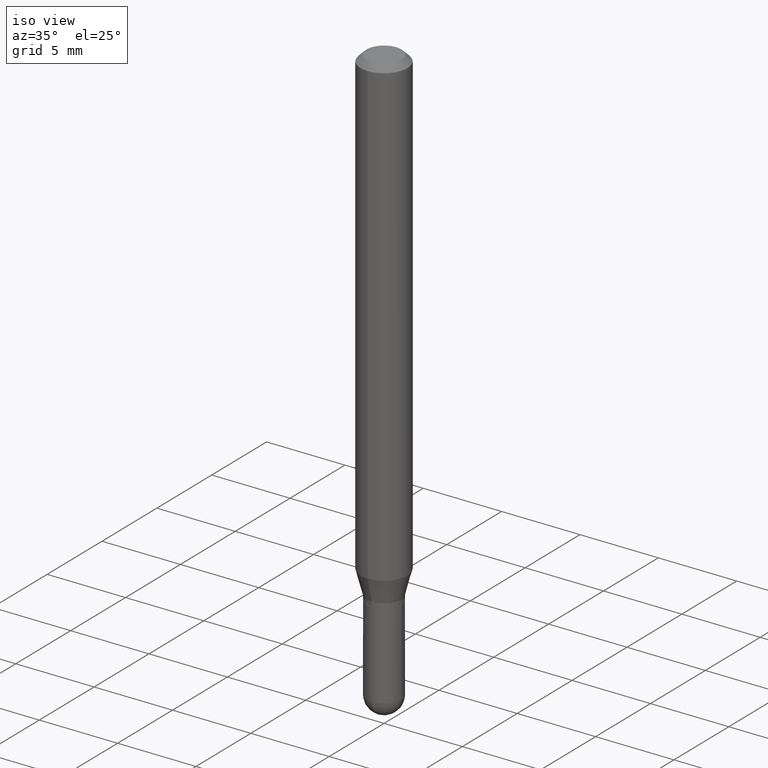
[diagram: clean part render]
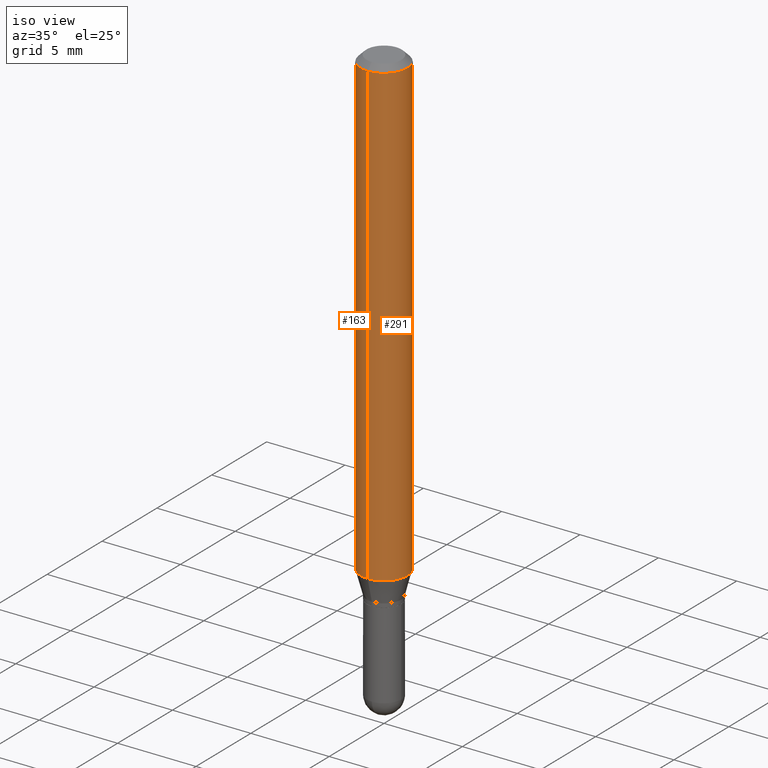
[diagram: same view with one multi-face feature highlighted, each face labeled with its STEP entity id]
A machine part, iso view. The highlighted faces form ONE feature: a constant-radius fillet chain: 2 tangent blend faces with common blend radius 1.4999 mm. The faces share edges in the B-rep.
Their STEP definitions:
[1] entity #163 (Cylinder):
#25 = CARTESIAN_POINT ( 'NONE',  ( 4.195754854663675961E-16, 0.05904999999999592519, -1.167320199780790491 ) ) ;
#27 = DIRECTION ( 'NONE',  ( -6.982962677686265922E-15, -1.000000000000000000, 3.505890868245046092E-15 ) ) ;
#28 = FACE_OUTER_BOUND ( 'NONE', #67, .T. ) ;
#29 = CARTESIAN_POINT ( 'NONE',  ( 2.854591987387200469E-29, -4.075752804959620874E-15, -1.167320199780790269 ) ) ;
#34 = LINE ( 'NONE', #420, #417 ) ;
#65 = CARTESIAN_POINT ( 'NONE',  ( 3.668134914383318048E-31, -5.237319810440648243E-17, -0.01500000000000009139 ) ) ;
#67 = EDGE_LOOP ( 'NONE', ( #92, #243, #298, #226 ) ) ;
#71 = CYLINDRICAL_SURFACE ( 'NONE', #80, 0.05904999999999999832 ) ;
#75 = CARTESIAN_POINT ( 'NONE',  ( 0.000000000000000000, 0.000000000000000000, 0.000000000000000000 ) ) ;
#80 = AXIS2_PLACEMENT_3D ( 'NONE', #75, #227, #457 ) ;
#92 = ORIENTED_EDGE ( 'NONE', *, *, #155, .F. ) ;
#109 = VERTEX_POINT ( 'NONE', #25 ) ;
#132 = CIRCLE ( 'NONE', #471, 0.05904999999999999832 ) ;
#135 = VERTEX_POINT ( 'NONE', #303 ) ;
#152 = DIRECTION ( 'NONE',  ( -2.445423276255530617E-29, 3.491546540293744525E-15, 1.000000000000000000 ) ) ;
#155 = EDGE_CURVE ( 'NONE', #109, #135, #34, .T. ) ;
#163 = ADVANCED_FACE ( 'NONE', ( #28 ), #71, .T. ) ;
#176 = VERTEX_POINT ( 'NONE', #387 ) ;
#179 = VERTEX_POINT ( 'NONE', #184 ) ;
#184 = CARTESIAN_POINT ( 'NONE',  ( -4.123439461173736383E-16, -0.05905000000000005383, -0.01499999999999988495 ) ) ;
#187 = LINE ( 'NONE', #500, #388 ) ;
#226 = ORIENTED_EDGE ( 'NONE', *, *, #265, .F. ) ;
#227 = DIRECTION ( 'NONE',  ( -2.445423276255530617E-29, 3.491546540293744130E-15, 1.000000000000000000 ) ) ;
#228 = AXIS2_PLACEMENT_3D ( 'NONE', #29, #271, #364 ) ;
#243 = ORIENTED_EDGE ( 'NONE', *, *, #276, .T. ) ;
#250 = CIRCLE ( 'NONE', #228, 0.05904999999999999832 ) ;
#265 = EDGE_CURVE ( 'NONE', #135, #179, #132, .T. ) ;
#270 = EDGE_CURVE ( 'NONE', #176, #179, #187, .T. ) ;
#271 = DIRECTION ( 'NONE',  ( -2.445423276255530617E-29, 3.491546540293744130E-15, 1.000000000000000000 ) ) ;
#276 = EDGE_CURVE ( 'NONE', #109, #176, #250, .T. ) ;
#298 = ORIENTED_EDGE ( 'NONE', *, *, #270, .T. ) ;
#303 = CARTESIAN_POINT ( 'NONE',  ( 4.195754854663679906E-16, 0.05904999999999995669, -0.01500000000000029955 ) ) ;
#364 = DIRECTION ( 'NONE',  ( -6.982962677686265922E-15, -1.000000000000000000, 4.626330217890369336E-15 ) ) ;
#383 = DIRECTION ( 'NONE',  ( -2.445423276255530617E-29, 3.491546540293744130E-15, 1.000000000000000000 ) ) ;
#387 = CARTESIAN_POINT ( 'NONE',  ( -4.123439461173455351E-16, -0.05905000000000407839, -1.167320199780790047 ) ) ;
#388 = VECTOR ( 'NONE', #152, 39.37007874015748143 ) ;
#417 = VECTOR ( 'NONE', #494, 39.37007874015748143 ) ;
#420 = CARTESIAN_POINT ( 'NONE',  ( 4.195754854663390985E-16, 0.05904999999999999832, -2.061758232043455943E-16 ) ) ;
#457 = DIRECTION ( 'NONE',  ( -6.982962677686265922E-15, -1.000000000000000000, 3.491546540293744130E-15 ) ) ;
#471 = AXIS2_PLACEMENT_3D ( 'NONE', #65, #383, #27 ) ;
#494 = DIRECTION ( 'NONE',  ( -2.445423276255530617E-29, 3.491546540293744525E-15, 1.000000000000000000 ) ) ;
#500 = CARTESIAN_POINT ( 'NONE',  ( -4.123439461173739834E-16, -0.05904999999999999832, 2.061758232043455943E-16 ) ) ;
[2] entity #291 (Cylinder):
#25 = CARTESIAN_POINT ( 'NONE',  ( 4.195754854663675961E-16, 0.05904999999999592519, -1.167320199780790491 ) ) ;
#34 = LINE ( 'NONE', #420, #417 ) ;
#79 = DIRECTION ( 'NONE',  ( -2.445423276255530617E-29, 3.491546540293744130E-15, 1.000000000000000000 ) ) ;
#82 = DIRECTION ( 'NONE',  ( -2.445423276255530617E-29, 3.491546540293744130E-15, 1.000000000000000000 ) ) ;
#109 = VERTEX_POINT ( 'NONE', #25 ) ;
#118 = AXIS2_PLACEMENT_3D ( 'NONE', #473, #79, #162 ) ;
#135 = VERTEX_POINT ( 'NONE', #303 ) ;
#142 = EDGE_LOOP ( 'NONE', ( #287, #206, #217, #223 ) ) ;
#152 = DIRECTION ( 'NONE',  ( -2.445423276255530617E-29, 3.491546540293744525E-15, 1.000000000000000000 ) ) ;
#155 = EDGE_CURVE ( 'NONE', #109, #135, #34, .T. ) ;
#162 = DIRECTION ( 'NONE',  ( -6.982962677686265922E-15, -1.000000000000000000, 3.505890868245046092E-15 ) ) ;
#176 = VERTEX_POINT ( 'NONE', #387 ) ;
#179 = VERTEX_POINT ( 'NONE', #184 ) ;
#184 = CARTESIAN_POINT ( 'NONE',  ( -4.123439461173736383E-16, -0.05905000000000005383, -0.01499999999999988495 ) ) ;
#187 = LINE ( 'NONE', #500, #388 ) ;
#206 = ORIENTED_EDGE ( 'NONE', *, *, #155, .T. ) ;
#217 = ORIENTED_EDGE ( 'NONE', *, *, #431, .F. ) ;
#223 = ORIENTED_EDGE ( 'NONE', *, *, #270, .F. ) ;
#231 = DIRECTION ( 'NONE',  ( -6.982962677686265922E-15, -1.000000000000000000, 3.491546540293744130E-15 ) ) ;
#270 = EDGE_CURVE ( 'NONE', #176, #179, #187, .T. ) ;
#273 = CIRCLE ( 'NONE', #118, 0.05904999999999999832 ) ;
#287 = ORIENTED_EDGE ( 'NONE', *, *, #346, .T. ) ;
#289 = CARTESIAN_POINT ( 'NONE',  ( 2.854591987387200469E-29, -4.075752804959620874E-15, -1.167320199780790269 ) ) ;
#291 = ADVANCED_FACE ( 'NONE', ( #357 ), #313, .T. ) ;
#293 = AXIS2_PLACEMENT_3D ( 'NONE', #289, #403, #478 ) ;
#301 = AXIS2_PLACEMENT_3D ( 'NONE', #434, #82, #231 ) ;
#303 = CARTESIAN_POINT ( 'NONE',  ( 4.195754854663679906E-16, 0.05904999999999995669, -0.01500000000000029955 ) ) ;
#313 = CYLINDRICAL_SURFACE ( 'NONE', #301, 0.05904999999999999832 ) ;
#346 = EDGE_CURVE ( 'NONE', #176, #109, #398, .T. ) ;
#357 = FACE_OUTER_BOUND ( 'NONE', #142, .T. ) ;
#387 = CARTESIAN_POINT ( 'NONE',  ( -4.123439461173455351E-16, -0.05905000000000407839, -1.167320199780790047 ) ) ;
#388 = VECTOR ( 'NONE', #152, 39.37007874015748143 ) ;
#398 = CIRCLE ( 'NONE', #293, 0.05904999999999999832 ) ;
#403 = DIRECTION ( 'NONE',  ( -2.445423276255530617E-29, 3.491546540293744130E-15, 1.000000000000000000 ) ) ;
#417 = VECTOR ( 'NONE', #494, 39.37007874015748143 ) ;
#420 = CARTESIAN_POINT ( 'NONE',  ( 4.195754854663390985E-16, 0.05904999999999999832, -2.061758232043455943E-16 ) ) ;
#431 = EDGE_CURVE ( 'NONE', #179, #135, #273, .T. ) ;
#434 = CARTESIAN_POINT ( 'NONE',  ( 0.000000000000000000, 0.000000000000000000, 0.000000000000000000 ) ) ;
#473 = CARTESIAN_POINT ( 'NONE',  ( 3.668134914383318048E-31, -5.237319810440648243E-17, -0.01500000000000009139 ) ) ;
#478 = DIRECTION ( 'NONE',  ( -6.982962677686265922E-15, -1.000000000000000000, 4.626330217890369336E-15 ) ) ;
#494 = DIRECTION ( 'NONE',  ( -2.445423276255530617E-29, 3.491546540293744525E-15, 1.000000000000000000 ) ) ;
#500 = CARTESIAN_POINT ( 'NONE',  ( -4.123439461173739834E-16, -0.05904999999999999832, 2.061758232043455943E-16 ) ) ;